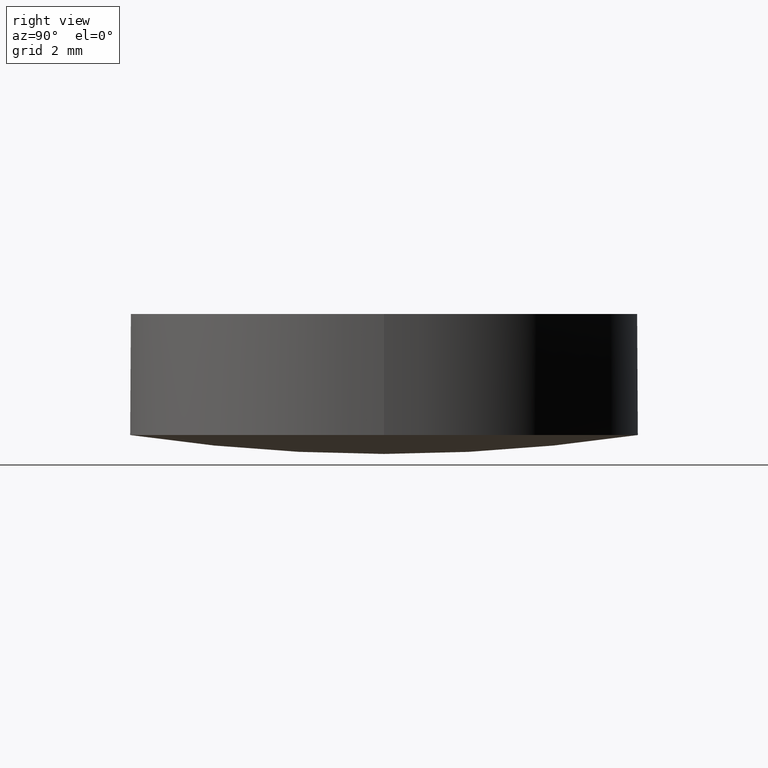
[diagram: clean part render]
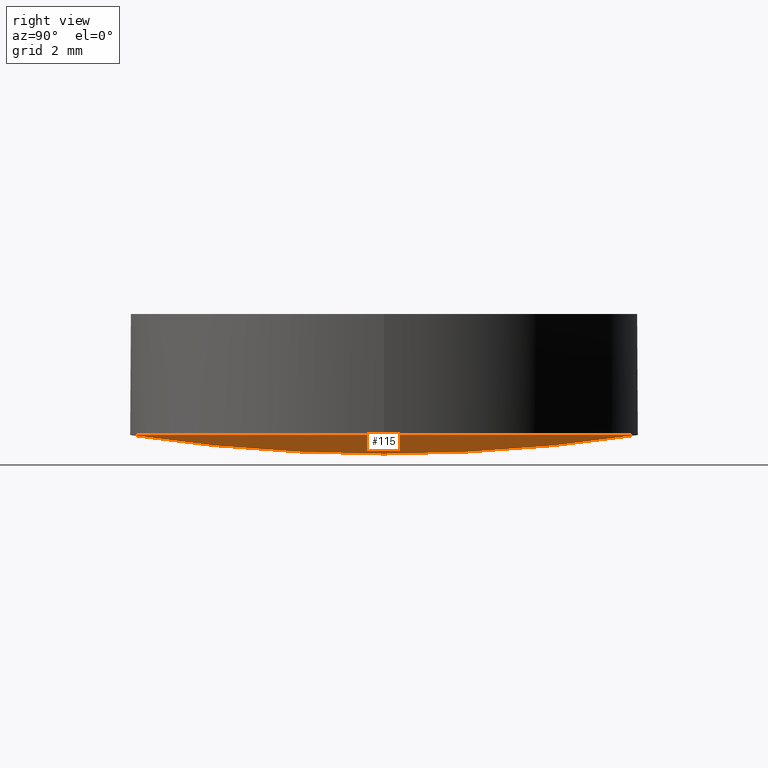
[diagram: same view with one face highlighted and labeled with its STEP entity id]
A machine part, right view. The second image highlights one B-rep face of the part: STEP entity #115.
In plain terms, the highlighted face is a freeform B-spline surface patch.
Its self-contained STEP definition (entity closure, byte-faithful):
#2 = CARTESIAN_POINT ( 'NONE',  ( 6.412075430496750900, 2.158144322370867000, 0.3178880206711990300 ) ) ;
#3 = CARTESIAN_POINT ( 'NONE',  ( 2.147358969697050300, -2.158144322370883800, -0.1627337046663991100 ) ) ;
#5 = DIRECTION ( 'NONE',  ( 1.000000000000000000, 0.0000000000000000000, 0.0000000000000000000 ) ) ;
#14 = AXIS2_PLACEMENT_3D ( 'NONE', #51, #109, #165 ) ;
#37 = CARTESIAN_POINT ( 'NONE',  ( -1.065814103640149800E-014, 2.158144322370867000, -0.1627337046663996100 ) ) ;
#39 = AXIS2_PLACEMENT_3D ( 'NONE', #226, #172, #57 ) ;
#51 = CARTESIAN_POINT ( 'NONE',  ( 2.498001805406600200E-016, 1.221245327087670000E-015, 0.4731195107520910200 ) ) ;
#52 = CARTESIAN_POINT ( 'NONE',  ( -1.065814103640150000E-014, -1.065814103640150000E-014, 42.85000000000000100 ) ) ;
#54 = CARTESIAN_POINT ( 'NONE',  ( 4.288710922068330200, 2.158144322370867400, -0.002227129056137999600 ) ) ;
#57 = DIRECTION ( 'NONE',  ( 1.000000000000000000, 0.0000000000000000000, 0.0000000000000000000 ) ) ;
#69 = CARTESIAN_POINT ( 'NONE',  ( 2.115045560822182300, 6.425627081475593800, 0.4845209326059044000 ) ) ;
#71 = CARTESIAN_POINT ( 'NONE',  ( 6.412075430496750000, -2.158144322370882500, 0.3178880206711995900 ) ) ;
#74 = VERTEX_POINT ( 'NONE', #235 ) ;
#76 = EDGE_CURVE ( 'NONE', #143, #214, #192, .T. ) ;
#94 = FACE_OUTER_BOUND ( 'NONE', #154, .T. ) ;
#102 = CIRCLE ( 'NONE', #39, 6.349999999999999600 ) ;
#107 = CARTESIAN_POINT ( 'NONE',  ( 6.349999999999999600, 1.221245327087670000E-015, 0.4731195107520910200 ) ) ;
#109 = DIRECTION ( 'NONE',  ( -0.0000000000000000000, -0.0000000000000000000, -1.000000000000000000 ) ) ;
#110 = CARTESIAN_POINT ( 'NONE',  ( -1.065814103640150000E-014, -6.425627081475608900, 0.4845209326059044000 ) ) ;
#111 = ORIENTED_EDGE ( 'NONE', *, *, #181, .T. ) ;
#115 = ADVANCED_FACE ( 'NONE', ( #94 ), #177, .T. ) ;
#122 = CARTESIAN_POINT ( 'NONE',  ( -1.065814103640149800E-014, -2.158144322370882500, -0.1627337046663991100 ) ) ;
#123 = CARTESIAN_POINT ( 'NONE',  ( -1.065814103640150000E-014, 6.425627081475592900, 0.4845209326059044000 ) ) ;
#124 = DIRECTION ( 'NONE',  ( 0.0000000000000000000, -1.000000000000000000, 0.0000000000000000000 ) ) ;
#126 = CARTESIAN_POINT ( 'NONE',  ( 6.315586665438821100, 6.425627081475592900, 0.9579102731656710100 ) ) ;
#127 = CIRCLE ( 'NONE', #200, 42.85000000000000100 ) ;
#139 = CARTESIAN_POINT ( 'NONE',  ( 4.224174497778516700, 6.425627081475593800, 0.6426122089215488000 ) ) ;
#143 = VERTEX_POINT ( 'NONE', #166 ) ;
#144 = CARTESIAN_POINT ( 'NONE',  ( 2.115045560822182300, -6.425627081475608900, 0.4845209326059044000 ) ) ;
#154 = EDGE_LOOP ( 'NONE', ( #111, #203, #195 ) ) ;
#163 = CARTESIAN_POINT ( 'NONE',  ( 4.288710922068329300, -2.158144322370883800, -0.002227129056137403300 ) ) ;
#164 = CARTESIAN_POINT ( 'NONE',  ( 6.315586665438821100, -6.425627081475608900, 0.9579102731656710100 ) ) ;
#165 = DIRECTION ( 'NONE',  ( 1.000000000000000000, 0.0000000000000000000, 0.0000000000000000000 ) ) ;
#166 = CARTESIAN_POINT ( 'NONE',  ( -1.065814103640150000E-014, 6.350000000000000500, 0.4731195107520927400 ) ) ;
#169 = EDGE_CURVE ( 'NONE', #74, #143, #127, .T. ) ;
#172 = DIRECTION ( 'NONE',  ( -0.0000000000000000000, -0.0000000000000000000, -1.000000000000000000 ) ) ;
#177 =( BOUNDED_SURFACE ( )  B_SPLINE_SURFACE ( 3, 3, ( 
 ( #110, #144, #201, #164 ),
 ( #122, #3, #163, #71 ),
 ( #37, #206, #54, #2 ),
 ( #123, #69, #139, #126 ) ),
 .UNSPECIFIED., .F., .F., .F. ) 
 B_SPLINE_SURFACE_WITH_KNOTS ( ( 4, 4 ),
 ( 4, 4 ),
 ( 0.0000000000000000000, 1.000000000000000000 ),
 ( 0.0000000000000000000, 1.000000000000000000 ),
 .UNSPECIFIED. ) 
 GEOMETRIC_REPRESENTATION_ITEM ( )  RATIONAL_B_SPLINE_SURFACE ( (
 ( 1.000000000000000000, 0.9981350681121785600, 0.9981350681121785600, 1.000000000000000000),
 ( 0.9924617513402426100, 0.9906108777727250500, 0.9906108777727250500, 0.9924617513402426100),
 ( 0.9924617513402426100, 0.9906108777727250500, 0.9906108777727250500, 0.9924617513402426100),
 ( 1.000000000000000000, 0.9981350681121785600, 0.9981350681121785600, 1.000000000000000000) ) ) 
 REPRESENTATION_ITEM ( '' )  SURFACE ( )  );
#181 = EDGE_CURVE ( 'NONE', #214, #74, #102, .T. ) ;
#192 = CIRCLE ( 'NONE', #14, 6.349999999999999600 ) ;
#195 = ORIENTED_EDGE ( 'NONE', *, *, #76, .T. ) ;
#200 = AXIS2_PLACEMENT_3D ( 'NONE', #52, #5, #124 ) ;
#201 = CARTESIAN_POINT ( 'NONE',  ( 4.224174497778516700, -6.425627081475608900, 0.6426122089215488000 ) ) ;
#203 = ORIENTED_EDGE ( 'NONE', *, *, #169, .T. ) ;
#206 = CARTESIAN_POINT ( 'NONE',  ( 2.147358969697050300, 2.158144322370867400, -0.1627337046663996400 ) ) ;
#214 = VERTEX_POINT ( 'NONE', #107 ) ;
#226 = CARTESIAN_POINT ( 'NONE',  ( 2.498001805406600200E-016, 1.221245327087670000E-015, 0.4731195107520910200 ) ) ;
#235 = CARTESIAN_POINT ( 'NONE',  ( -1.065814103640150000E-014, -6.350000000000010300, 0.4731195107520927400 ) ) ;